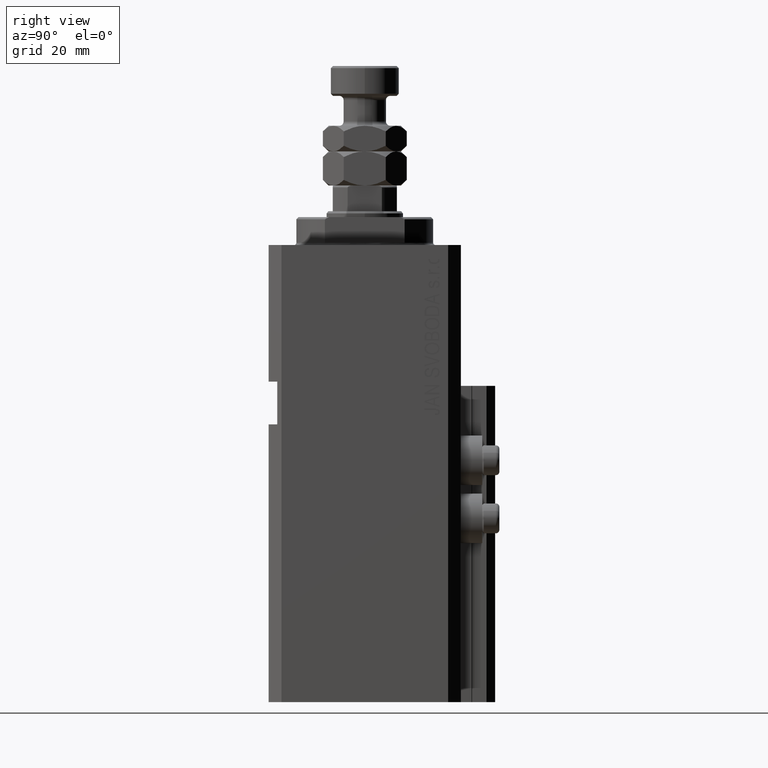
[diagram: clean part render]
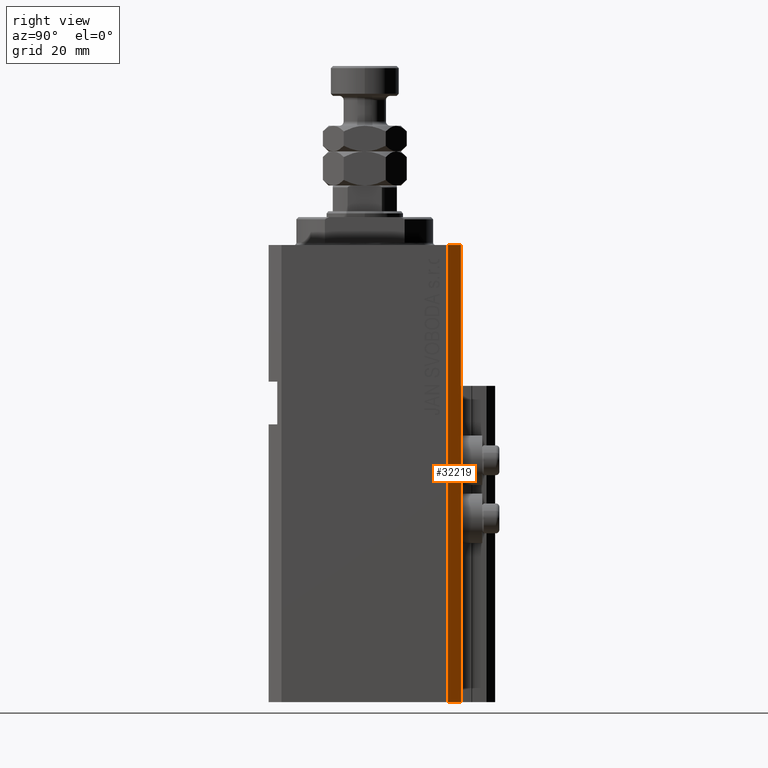
[diagram: same view with one face highlighted and labeled with its STEP entity id]
A machine part, right view. The second image highlights one B-rep face of the part: STEP entity #32219.
In plain terms, the highlighted planar face has unit normal (0.7071, 0.7071, 0).
Its self-contained STEP definition (entity closure, byte-faithful):
#2421 = VERTEX_POINT ( 'NONE', #5523 ) ;
#3902 = CARTESIAN_POINT ( 'NONE',  ( 32.49999999999702993, 19.49999999999945999, 0.000000000000000000 ) ) ;
#4889 = ORIENTED_EDGE ( 'NONE', *, *, #9843, .T. ) ;
#4955 = CARTESIAN_POINT ( 'NONE',  ( 29.49999999999707967, 22.49999999999951328, 0.000000000000000000 ) ) ;
#5523 = CARTESIAN_POINT ( 'NONE',  ( 29.49999999999707967, 22.49999999999951328, -107.0000000000000000 ) ) ;
#6031 = VECTOR ( 'NONE', #32616, 1000.000000000000000 ) ;
#6037 = VECTOR ( 'NONE', #22686, 1000.000000000000000 ) ;
#6552 = PLANE ( 'NONE',  #31529 ) ;
#7247 = CARTESIAN_POINT ( 'NONE',  ( 32.49999999999702993, 19.49999999999945999, -107.0000000000000000 ) ) ;
#7696 = ORIENTED_EDGE ( 'NONE', *, *, #18677, .F. ) ;
#8016 = CARTESIAN_POINT ( 'NONE',  ( 32.49999999999702993, 19.49999999999945999, -107.0000000000000000 ) ) ;
#9843 = EDGE_CURVE ( 'NONE', #25213, #2421, #23405, .T. ) ;
#11004 = LINE ( 'NONE', #23725, #15158 ) ;
#11015 = DIRECTION ( 'NONE',  ( -0.7071067811865352493, 0.7071067811865597852, 0.000000000000000000 ) ) ;
#15158 = VECTOR ( 'NONE', #42491, 1000.000000000000000 ) ;
#18677 = EDGE_CURVE ( 'NONE', #32467, #42179, #23821, .T. ) ;
#19471 = CARTESIAN_POINT ( 'NONE',  ( 32.49999999999702993, 19.49999999999945999, -107.0000000000000000 ) ) ;
#19800 = EDGE_LOOP ( 'NONE', ( #7696, #39015, #4889, #42027 ) ) ;
#22686 = DIRECTION ( 'NONE',  ( -0.7071067811865352493, 0.7071067811865597852, 0.000000000000000000 ) ) ;
#23405 = LINE ( 'NONE', #19471, #6037 ) ;
#23725 = CARTESIAN_POINT ( 'NONE',  ( 32.49999999999702993, 19.49999999999945999, -107.0000000000000000 ) ) ;
#23821 = LINE ( 'NONE', #3902, #34345 ) ;
#25213 = VERTEX_POINT ( 'NONE', #7247 ) ;
#25313 = FACE_OUTER_BOUND ( 'NONE', #19800, .T. ) ;
#29930 = CARTESIAN_POINT ( 'NONE',  ( 32.49999999999702993, 19.49999999999945999, 0.000000000000000000 ) ) ;
#31529 = AXIS2_PLACEMENT_3D ( 'NONE', #8016, #37632, #11015 ) ;
#32219 = ADVANCED_FACE ( 'NONE', ( #25313 ), #6552, .T. ) ;
#32467 = VERTEX_POINT ( 'NONE', #29930 ) ;
#32616 = DIRECTION ( 'NONE',  ( 0.000000000000000000, 0.000000000000000000, 1.000000000000000000 ) ) ;
#34345 = VECTOR ( 'NONE', #46289, 1000.000000000000000 ) ;
#36457 = EDGE_CURVE ( 'NONE', #25213, #32467, #11004, .T. ) ;
#37632 = DIRECTION ( 'NONE',  ( 0.7071067811865597852, 0.7071067811865352493, -0.000000000000000000 ) ) ;
#39015 = ORIENTED_EDGE ( 'NONE', *, *, #36457, .F. ) ;
#42027 = ORIENTED_EDGE ( 'NONE', *, *, #47304, .T. ) ;
#42179 = VERTEX_POINT ( 'NONE', #4955 ) ;
#42491 = DIRECTION ( 'NONE',  ( 0.000000000000000000, 0.000000000000000000, 1.000000000000000000 ) ) ;
#43491 = LINE ( 'NONE', #47434, #6031 ) ;
#46289 = DIRECTION ( 'NONE',  ( -0.7071067811865352493, 0.7071067811865597852, 0.000000000000000000 ) ) ;
#47304 = EDGE_CURVE ( 'NONE', #2421, #42179, #43491, .T. ) ;
#47434 = CARTESIAN_POINT ( 'NONE',  ( 29.49999999999707967, 22.49999999999951328, -107.0000000000000000 ) ) ;